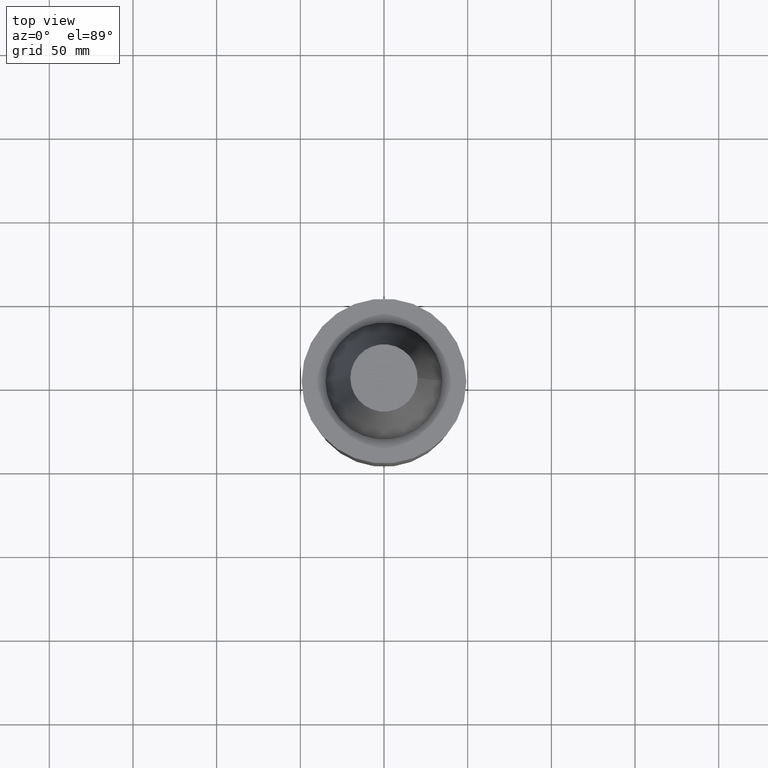
[diagram: clean part render]
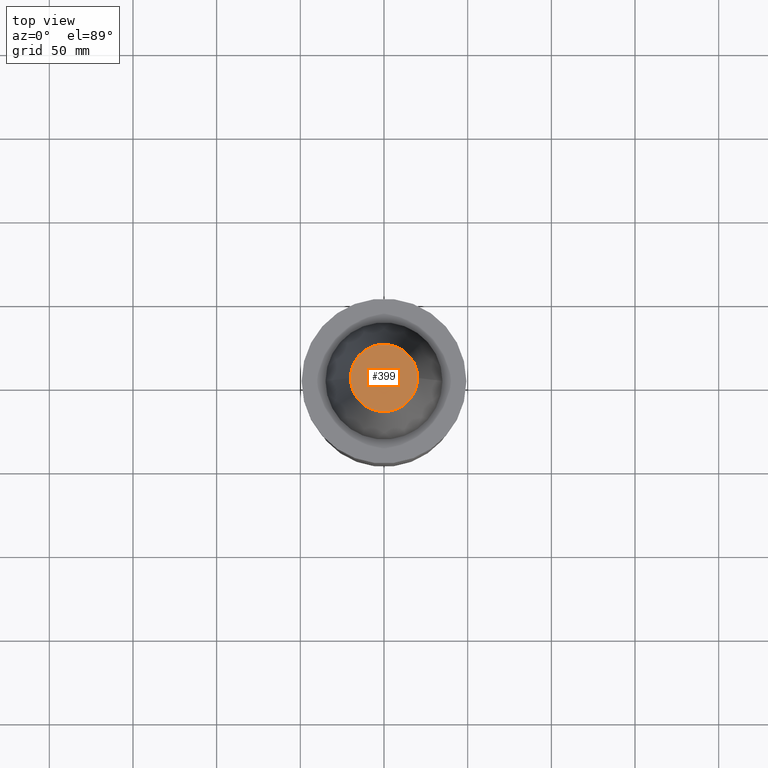
[diagram: same view with one face highlighted and labeled with its STEP entity id]
A machine part, top view. The second image highlights one B-rep face of the part: STEP entity #399.
In plain terms, the highlighted planar face has unit normal (0, 0, -1).
Its self-contained STEP definition (entity closure, byte-faithful):
#72 = DIRECTION ( 'NONE',  ( -0.000000000000000000, -0.000000000000000000, 1.000000000000000000 ) ) ;
#203 = DIRECTION ( 'NONE',  ( 0.000000000000000000, 0.000000000000000000, -1.000000000000000000 ) ) ;
#218 = VERTEX_POINT ( 'NONE', #460 ) ;
#261 = CIRCLE ( 'NONE', #704, 20.10819343178871321 ) ;
#268 = ORIENTED_EDGE ( 'NONE', *, *, #829, .T. ) ;
#278 = VERTEX_POINT ( 'NONE', #930 ) ;
#319 = AXIS2_PLACEMENT_3D ( 'NONE', #415, #915, #1086 ) ;
#336 = FACE_OUTER_BOUND ( 'NONE', #579, .T. ) ;
#399 = ADVANCED_FACE ( 'NONE', ( #336 ), #922, .F. ) ;
#415 = CARTESIAN_POINT ( 'NONE',  ( 0.000000000000000000, 0.000000000000000000, 101.5999999999999801 ) ) ;
#460 = CARTESIAN_POINT ( 'NONE',  ( 20.10819343178871321, 3.369811209154858606E-15, 101.5999999999999801 ) ) ;
#481 = CIRCLE ( 'NONE', #319, 20.10819343178871321 ) ;
#548 = DIRECTION ( 'NONE',  ( -1.000000000000000000, 0.000000000000000000, -0.000000000000000000 ) ) ;
#579 = EDGE_LOOP ( 'NONE', ( #722, #268 ) ) ;
#588 = EDGE_CURVE ( 'NONE', #278, #218, #481, .T. ) ;
#607 = CARTESIAN_POINT ( 'NONE',  ( 0.000000000000000000, 0.000000000000000000, 101.5999999999999801 ) ) ;
#704 = AXIS2_PLACEMENT_3D ( 'NONE', #607, #72, #1026 ) ;
#722 = ORIENTED_EDGE ( 'NONE', *, *, #588, .T. ) ;
#829 = EDGE_CURVE ( 'NONE', #218, #278, #261, .T. ) ;
#861 = AXIS2_PLACEMENT_3D ( 'NONE', #979, #203, #548 ) ;
#915 = DIRECTION ( 'NONE',  ( -0.000000000000000000, -0.000000000000000000, 1.000000000000000000 ) ) ;
#922 = PLANE ( 'NONE',  #861 ) ;
#930 = CARTESIAN_POINT ( 'NONE',  ( -20.10819343178871321, 0.000000000000000000, 101.5999999999999801 ) ) ;
#979 = CARTESIAN_POINT ( 'NONE',  ( 0.000000000000000000, 20.10819343178871321, 101.5999999999999943 ) ) ;
#1026 = DIRECTION ( 'NONE',  ( 1.000000000000000000, 0.000000000000000000, 0.000000000000000000 ) ) ;
#1086 = DIRECTION ( 'NONE',  ( 1.000000000000000000, 0.000000000000000000, 0.000000000000000000 ) ) ;